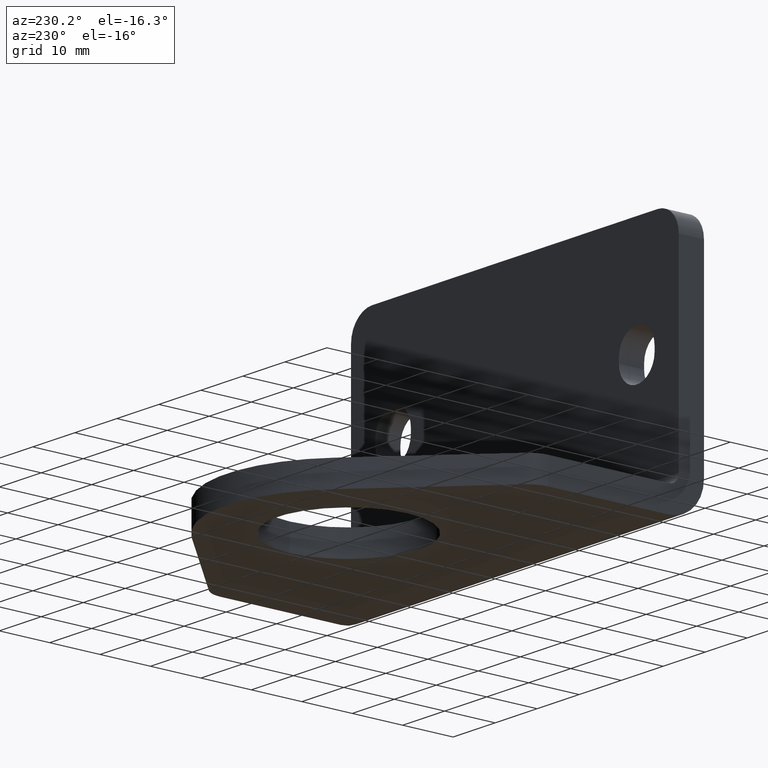
[diagram: clean part render]
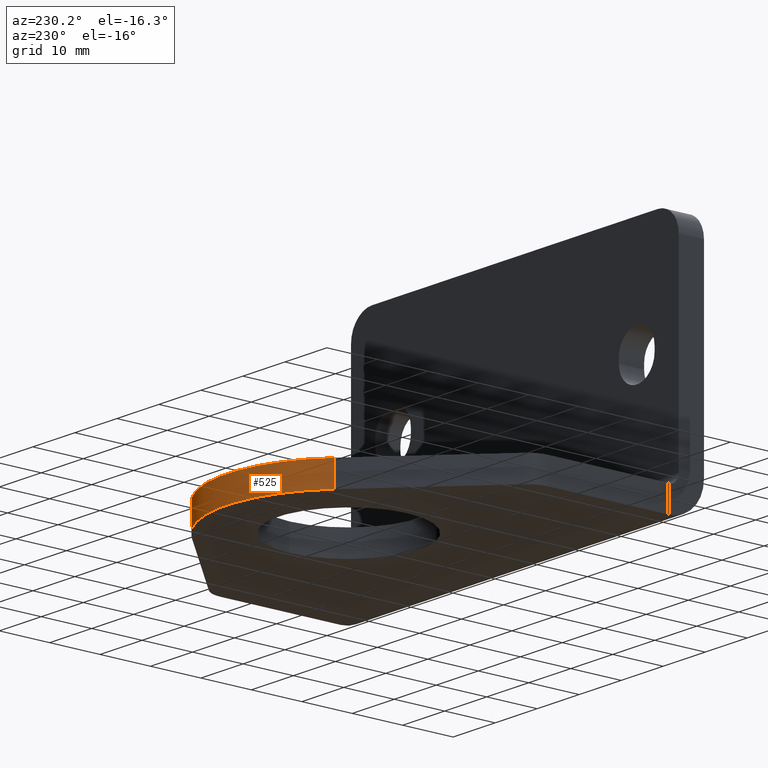
[diagram: same view with one face highlighted and labeled with its STEP entity id]
A machine part, auxiliary view. The second image highlights one B-rep face of the part: STEP entity #525.
In plain terms, the highlighted cylindrical surface (partial cylindrical patch) has radius 24 mm, axis along (0, 0, 1).
Its self-contained STEP definition (entity closure, byte-faithful):
#62=FACE_OUTER_BOUND('',#96,.T.);
#96=EDGE_LOOP('',(#464,#465,#466,#467));
#146=LINE('',#898,#195);
#147=LINE('',#902,#196);
#195=VECTOR('',#744,10.);
#196=VECTOR('',#749,10.);
#217=CIRCLE('',#591,24.);
#222=CIRCLE('',#600,24.);
#260=VERTEX_POINT('',#876);
#261=VERTEX_POINT('',#878);
#267=VERTEX_POINT('',#896);
#268=VERTEX_POINT('',#900);
#326=EDGE_CURVE('',#261,#260,#217,.T.);
#336=EDGE_CURVE('',#260,#267,#146,.T.);
#337=EDGE_CURVE('',#268,#267,#222,.T.);
#338=EDGE_CURVE('',#261,#268,#147,.T.);
#464=ORIENTED_EDGE('',*,*,#326,.T.);
#465=ORIENTED_EDGE('',*,*,#336,.T.);
#466=ORIENTED_EDGE('',*,*,#337,.F.);
#467=ORIENTED_EDGE('',*,*,#338,.F.);
#499=CYLINDRICAL_SURFACE('',#599,24.);
#525=ADVANCED_FACE('',(#62),#499,.T.);
#591=AXIS2_PLACEMENT_3D('',#879,#723,#724);
#599=AXIS2_PLACEMENT_3D('',#899,#745,#746);
#600=AXIS2_PLACEMENT_3D('',#901,#747,#748);
#723=DIRECTION('center_axis',(0.,0.,1.));
#724=DIRECTION('ref_axis',(0.70710678118655,0.707106781186545,0.));
#744=DIRECTION('',(0.,0.,1.));
#745=DIRECTION('center_axis',(0.,0.,1.));
#746=DIRECTION('ref_axis',(0.70710678118655,0.707106781186545,0.));
#747=DIRECTION('center_axis',(0.,0.,1.));
#748=DIRECTION('ref_axis',(0.70710678118655,0.707106781186545,0.));
#749=DIRECTION('',(0.,0.,1.));
#876=CARTESIAN_POINT('',(42.6336919535964,276.370854660301,0.));
#878=CARTESIAN_POINT('',(76.5748174505506,276.370854660301,0.));
#879=CARTESIAN_POINT('Origin',(59.6042547020734,259.400291911824,0.));
#896=CARTESIAN_POINT('',(42.6336919535964,276.370854660301,5.));
#898=CARTESIAN_POINT('',(42.6336919535964,276.370854660301,0.));
#899=CARTESIAN_POINT('Origin',(59.6042547020734,259.400291911824,0.));
#900=CARTESIAN_POINT('',(76.5748174505506,276.370854660301,5.));
#901=CARTESIAN_POINT('Origin',(59.6042547020734,259.400291911824,5.));
#902=CARTESIAN_POINT('',(76.5748174505506,276.370854660301,0.));